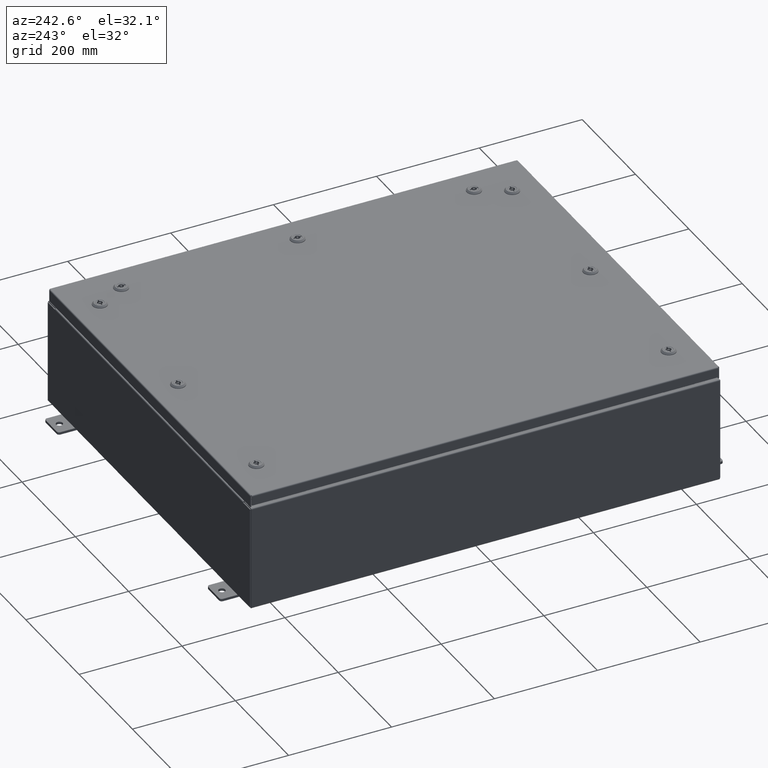
[diagram: clean part render]
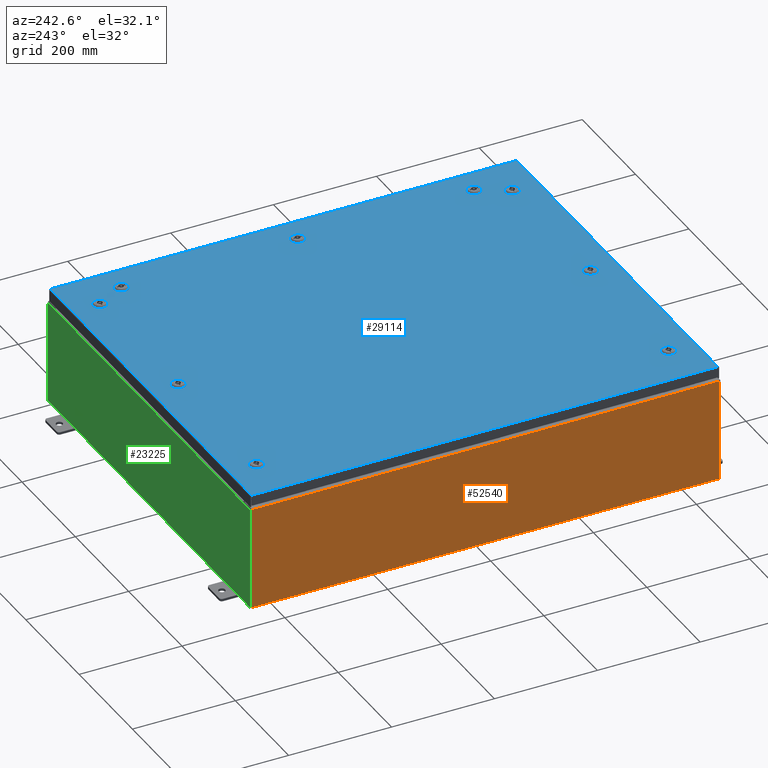
[diagram: same view with three faces highlighted in distinct colors, each labeled with its STEP entity id]
A machine part, auxiliary view with three faces highlighted in distinct colors.
Their STEP definitions:

[orange] entity #52540 — the highlighted planar face has unit normal (1, 0, 0).
#1240 = VECTOR ( 'NONE', #11607, 39.37007874015748100 ) ;
#2078 = CARTESIAN_POINT ( 'NONE',  ( -15.00000000000000400, -17.92530000000000000, -5.403395625144963300E-014 ) ) ;
#5622 = ORIENTED_EDGE ( 'NONE', *, *, #5788, .T. ) ;
#5788 = EDGE_CURVE ( 'NONE', #61173, #23015, #40225, .T. ) ;
#5936 = VERTEX_POINT ( 'NONE', #52964 ) ;
#6127 = VERTEX_POINT ( 'NONE', #28693 ) ;
#7732 = VECTOR ( 'NONE', #46906, 39.37007874015748100 ) ;
#10177 = VECTOR ( 'NONE', #37631, 39.37007874015748100 ) ;
#11293 = CARTESIAN_POINT ( 'NONE',  ( -15.00000000000000400, 17.92530000000000000, 0.01299999999999984700 ) ) ;
#11607 = DIRECTION ( 'NONE',  ( 3.584876173029202900E-015, 0.0000000000000000000, -1.000000000000000000 ) ) ;
#11846 = PLANE ( 'NONE',  #28466 ) ;
#16561 = ORIENTED_EDGE ( 'NONE', *, *, #24293, .T. ) ;
#16760 = EDGE_LOOP ( 'NONE', ( #53736, #5622, #45268, #16561 ) ) ;
#18169 = LINE ( 'NONE', #46766, #31697 ) ;
#18217 = CARTESIAN_POINT ( 'NONE',  ( -15.00000000000000400, 17.92530000000000000, 0.01299999999999983600 ) ) ;
#21857 = CARTESIAN_POINT ( 'NONE',  ( -15.00000000000000400, 17.92530000000000000, -5.403395625144963300E-014 ) ) ;
#22083 = DIRECTION ( 'NONE',  ( 1.000000000000000000, 0.0000000000000000000, 3.584876173029202900E-015 ) ) ;
#22198 = CARTESIAN_POINT ( 'NONE',  ( -15.00000000000003200, 17.92530000000000000, 7.837599999999999200 ) ) ;
#23015 = VERTEX_POINT ( 'NONE', #18217 ) ;
#24293 = EDGE_CURVE ( 'NONE', #6127, #5936, #37205, .T. ) ;
#26528 = DIRECTION ( 'NONE',  ( 0.0000000000000000000, 1.000000000000000000, 0.0000000000000000000 ) ) ;
#28145 = EDGE_CURVE ( 'NONE', #5936, #61173, #18169, .T. ) ;
#28466 = AXIS2_PLACEMENT_3D ( 'NONE', #32081, #22083, #57680 ) ;
#28693 = CARTESIAN_POINT ( 'NONE',  ( -15.00000000000000400, -17.92530000000000000, 0.01299999999999984700 ) ) ;
#29100 = EDGE_CURVE ( 'NONE', #6127, #23015, #34826, .T. ) ;
#30365 = FACE_OUTER_BOUND ( 'NONE', #16760, .T. ) ;
#31697 = VECTOR ( 'NONE', #26528, 39.37007874015748100 ) ;
#32081 = CARTESIAN_POINT ( 'NONE',  ( -15.00000000000000400, 0.0000000000000000000, -5.403395625144963300E-014 ) ) ;
#34826 = LINE ( 'NONE', #11293, #7732 ) ;
#37205 = LINE ( 'NONE', #2078, #10177 ) ;
#37631 = DIRECTION ( 'NONE',  ( -3.584876173029202900E-015, 0.0000000000000000000, 1.000000000000000000 ) ) ;
#40225 = LINE ( 'NONE', #21857, #1240 ) ;
#45268 = ORIENTED_EDGE ( 'NONE', *, *, #29100, .F. ) ;
#46766 = CARTESIAN_POINT ( 'NONE',  ( -15.00000000000003200, -17.92530000000000000, 7.837599999999999200 ) ) ;
#46906 = DIRECTION ( 'NONE',  ( -0.0000000000000000000, 1.000000000000000000, -0.0000000000000000000 ) ) ;
#52540 = ADVANCED_FACE ( 'NONE', ( #30365 ), #11846, .F. ) ;
#52964 = CARTESIAN_POINT ( 'NONE',  ( -15.00000000000003200, -17.92530000000000000, 7.837599999999999200 ) ) ;
#53736 = ORIENTED_EDGE ( 'NONE', *, *, #28145, .T. ) ;
#57680 = DIRECTION ( 'NONE',  ( 3.584876173029202900E-015, 0.0000000000000000000, -1.000000000000000000 ) ) ;
#61173 = VERTEX_POINT ( 'NONE', #22198 ) ;

[blue] entity #29114 — the highlighted planar face has unit normal (0, 0, -1).
#155 = LINE ( 'NONE', #30704, #39104 ) ;
#223 = DIRECTION ( 'NONE',  ( -0.0000000000000000000, -6.982962677686266700E-015, 1.000000000000000000 ) ) ;
#236 = CARTESIAN_POINT ( 'NONE',  ( -11.36304762473209400, 16.18279999999998300, 0.0000000000000000000 ) ) ;
#450 = LINE ( 'NONE', #33769, #25928 ) ;
#601 = VERTEX_POINT ( 'NONE', #34027 ) ;
#625 = DIRECTION ( 'NONE',  ( -1.000000000000000000, -0.0000000000000000000, -6.982962677686306200E-015 ) ) ;
#886 = CARTESIAN_POINT ( 'NONE',  ( 11.56249999999998200, -15.78779999999999500, -9.280357398645127900E-015 ) ) ;
#1101 = PLANE ( 'NONE',  #20292 ) ;
#1357 = CARTESIAN_POINT ( 'NONE',  ( 11.56249999999998200, -15.78779999999999500, -9.280357398645127900E-015 ) ) ;
#1432 = DIRECTION ( 'NONE',  ( -5.478697338139220100E-015, 1.000000000000000000, -0.0000000000000000000 ) ) ;
#1442 = CARTESIAN_POINT ( 'NONE',  ( -14.84980000000000200, 17.84979999999999800, -2.048885995248197400E-016 ) ) ;
#1656 = CIRCLE ( 'NONE', #19888, 0.4424999999999983400 ) ;
#1927 = ORIENTED_EDGE ( 'NONE', *, *, #12160, .F. ) ;
#1963 = AXIS2_PLACEMENT_3D ( 'NONE', #46003, #15574, #51142 ) ;
#1968 = DIRECTION ( 'NONE',  ( -0.0000000000000000000, -6.982962677686266700E-015, 1.000000000000000000 ) ) ;
#1994 = CIRCLE ( 'NONE', #1963, 0.4424999999999983400 ) ;
#2149 = AXIS2_PLACEMENT_3D ( 'NONE', #38192, #7721, #43327 ) ;
#2293 = AXIS2_PLACEMENT_3D ( 'NONE', #30682, #223, #35789 ) ;
#2431 = DIRECTION ( 'NONE',  ( 0.0000000000000000000, 0.0000000000000000000, 1.000000000000000000 ) ) ;
#3245 = ORIENTED_EDGE ( 'NONE', *, *, #54302, .F. ) ;
#3354 = VERTEX_POINT ( 'NONE', #32312 ) ;
#3888 = CARTESIAN_POINT ( 'NONE',  ( 1.529834876451987200E-014, -15.78779999999999000, -2.521317385144146900E-013 ) ) ;
#4235 = AXIS2_PLACEMENT_3D ( 'NONE', #40244, #9768, #45359 ) ;
#4294 = AXIS2_PLACEMENT_3D ( 'NONE', #25294, #60916, #30409 ) ;
#4567 = CARTESIAN_POINT ( 'NONE',  ( 13.18280000000000700, -0.1994523752678676000, 0.0000000000000000000 ) ) ;
#4942 = CARTESIAN_POINT ( 'NONE',  ( 12.00499999999998100, -15.78779999999999500, -6.190396413768972700E-015 ) ) ;
#4946 = EDGE_CURVE ( 'NONE', #61001, #25186, #25154, .T. ) ;
#5113 = AXIS2_PLACEMENT_3D ( 'NONE', #3888, #39472, #8993 ) ;
#5191 = CARTESIAN_POINT ( 'NONE',  ( 14.84979999999999700, -17.84979999999999800, -2.048885995248197400E-016 ) ) ;
#5834 = CIRCLE ( 'NONE', #48675, 0.4424999999999961700 ) ;
#5986 = DIRECTION ( 'NONE',  ( 1.000000000000000000, 0.0000000000000000000, 6.982962677686252500E-015 ) ) ;
#6189 = FACE_BOUND ( 'NONE', #11021, .T. ) ;
#6427 = CIRCLE ( 'NONE', #22537, 0.4424999999999961700 ) ;
#6447 = CARTESIAN_POINT ( 'NONE',  ( 12.78780000000000600, -13.50000000000001800, -9.426999614876466400E-014 ) ) ;
#6469 = DIRECTION ( 'NONE',  ( 1.000000000000000000, 0.0000000000000000000, 6.982962677686252500E-015 ) ) ;
#6756 = LINE ( 'NONE', #26053, #32207 ) ;
#7100 = DIRECTION ( 'NONE',  ( 0.0000000000000000000, 0.0000000000000000000, 1.000000000000000000 ) ) ;
#7138 = DIRECTION ( 'NONE',  ( 0.0000000000000000000, 0.0000000000000000000, 1.000000000000000000 ) ) ;
#7286 = CARTESIAN_POINT ( 'NONE',  ( 0.1994523752678995500, -15.39279999999999400, -2.493734682567286900E-013 ) ) ;
#7522 = EDGE_CURVE ( 'NONE', #32499, #28945, #1994, .T. ) ;
#7721 = DIRECTION ( 'NONE',  ( -6.982962677686266700E-015, -6.982962677686266700E-015, 1.000000000000000000 ) ) ;
#7734 = CARTESIAN_POINT ( 'NONE',  ( 14.84979999999999700, -17.84979999999999800, -2.048885995248197400E-016 ) ) ;
#8391 = VERTEX_POINT ( 'NONE', #23850 ) ;
#8417 = DIRECTION ( 'NONE',  ( -1.095739467627838000E-014, -1.000000000000000000, 0.0000000000000000000 ) ) ;
#8479 = VERTEX_POINT ( 'NONE', #24949 ) ;
#8554 = AXIS2_PLACEMENT_3D ( 'NONE', #32414, #1968, #37514 ) ;
#8903 = VERTEX_POINT ( 'NONE', #31450 ) ;
#8993 = DIRECTION ( 'NONE',  ( 0.0000000000000000000, 1.000000000000000000, 6.982962677686270700E-015 ) ) ;
#9435 = VERTEX_POINT ( 'NONE', #60544 ) ;
#9768 = DIRECTION ( 'NONE',  ( -0.0000000000000000000, -6.982962677686266700E-015, 1.000000000000000000 ) ) ;
#9818 = ORIENTED_EDGE ( 'NONE', *, *, #57902, .T. ) ;
#10134 = ORIENTED_EDGE ( 'NONE', *, *, #54936, .T. ) ;
#10342 = VECTOR ( 'NONE', #52389, 39.37007874015748100 ) ;
#10841 = CIRCLE ( 'NONE', #63305, 0.4424999999999973400 ) ;
#10945 = ORIENTED_EDGE ( 'NONE', *, *, #29200, .F. ) ;
#11021 = EDGE_LOOP ( 'NONE', ( #37537, #26807, #25952, #10945, #51276 ) ) ;
#11263 = VERTEX_POINT ( 'NONE', #50625 ) ;
#11514 = CARTESIAN_POINT ( 'NONE',  ( 0.0000000000000000000, 0.0000000000000000000, 0.0000000000000000000 ) ) ;
#11544 = DIRECTION ( 'NONE',  ( 0.0000000000000000000, 1.000000000000000000, 6.982962677686270700E-015 ) ) ;
#11768 = DIRECTION ( 'NONE',  ( 0.0000000000000000000, -1.000000000000000000, 0.0000000000000000000 ) ) ;
#11803 = AXIS2_PLACEMENT_3D ( 'NONE', #25245, #60861, #30360 ) ;
#11925 = CARTESIAN_POINT ( 'NONE',  ( 11.36304762473209400, 16.18279999999998600, -2.414586126232980000E-013 ) ) ;
#12012 = DIRECTION ( 'NONE',  ( -1.095739467627836100E-014, -1.000000000000000000, 0.0000000000000000000 ) ) ;
#12039 = CARTESIAN_POINT ( 'NONE',  ( -11.56249999999998200, -15.78779999999999500, -2.521317385144146900E-013 ) ) ;
#12160 = EDGE_CURVE ( 'NONE', #25186, #50595, #56951, .T. ) ;
#12461 = EDGE_CURVE ( 'NONE', #11263, #51493, #50583, .T. ) ;
#12651 = CARTESIAN_POINT ( 'NONE',  ( 13.18280000000000200, 0.1994523752679009100, 0.0000000000000000000 ) ) ;
#12871 = DIRECTION ( 'NONE',  ( 6.982962677686266700E-015, -0.0000000000000000000, 1.000000000000000000 ) ) ;
#12878 = VECTOR ( 'NONE', #1432, 39.37007874015748100 ) ;
#13310 = CIRCLE ( 'NONE', #32452, 0.4424999999999961700 ) ;
#13397 = ORIENTED_EDGE ( 'NONE', *, *, #17614, .F. ) ;
#13716 = AXIS2_PLACEMENT_3D ( 'NONE', #20043, #55633, #25139 ) ;
#14005 = ORIENTED_EDGE ( 'NONE', *, *, #15912, .F. ) ;
#14067 = ORIENTED_EDGE ( 'NONE', *, *, #48541, .F. ) ;
#14348 = VERTEX_POINT ( 'NONE', #30591 ) ;
#14787 = ORIENTED_EDGE ( 'NONE', *, *, #64689, .F. ) ;
#14960 = VECTOR ( 'NONE', #37500, 39.37007874015748100 ) ;
#15026 = VERTEX_POINT ( 'NONE', #50320 ) ;
#15066 = LINE ( 'NONE', #58688, #54013 ) ;
#15568 = VECTOR ( 'NONE', #27105, 39.37007874015748100 ) ;
#15574 = DIRECTION ( 'NONE',  ( 6.982962677686266700E-015, -0.0000000000000000000, 1.000000000000000000 ) ) ;
#15912 = EDGE_CURVE ( 'NONE', #23263, #56764, #54325, .T. ) ;
#16524 = LINE ( 'NONE', #32397, #14960 ) ;
#16527 = VERTEX_POINT ( 'NONE', #32408 ) ;
#16725 = CARTESIAN_POINT ( 'NONE',  ( -11.56249999999998800, 15.78779999999999000, 0.0000000000000000000 ) ) ;
#16894 = CARTESIAN_POINT ( 'NONE',  ( 11.36304762473209200, -16.18279999999998600, -1.343139614880270700E-014 ) ) ;
#17050 = EDGE_CURVE ( 'NONE', #14348, #32156, #55030, .T. ) ;
#17194 = DIRECTION ( 'NONE',  ( 0.0000000000000000000, 1.000000000000000000, 6.982962677686304600E-015 ) ) ;
#17392 = ORIENTED_EDGE ( 'NONE', *, *, #19144, .F. ) ;
#17492 = LINE ( 'NONE', #59181, #54914 ) ;
#17614 = EDGE_CURVE ( 'NONE', #32156, #30921, #62942, .T. ) ;
#17736 = CARTESIAN_POINT ( 'NONE',  ( 12.39280000000001400, -13.69945237526790600, -9.566276464123621500E-014 ) ) ;
#18178 = ORIENTED_EDGE ( 'NONE', *, *, #18775, .F. ) ;
#18224 = VECTOR ( 'NONE', #27198, 39.37007874015748100 ) ;
#18517 = ORIENTED_EDGE ( 'NONE', *, *, #57455, .F. ) ;
#18567 = VERTEX_POINT ( 'NONE', #51306 ) ;
#18608 = VERTEX_POINT ( 'NONE', #41264 ) ;
#18775 = EDGE_CURVE ( 'NONE', #57628, #18608, #34391, .T. ) ;
#18830 = CARTESIAN_POINT ( 'NONE',  ( 1.529834876451987200E-014, 15.78779999999999000, 0.0000000000000000000 ) ) ;
#18844 = ORIENTED_EDGE ( 'NONE', *, *, #65407, .F. ) ;
#19144 = EDGE_CURVE ( 'NONE', #16527, #23263, #38335, .T. ) ;
#19259 = EDGE_CURVE ( 'NONE', #46723, #51944, #50331, .T. ) ;
#19734 = FACE_BOUND ( 'NONE', #46741, .T. ) ;
#19888 = AXIS2_PLACEMENT_3D ( 'NONE', #32877, #2431, #37990 ) ;
#20043 = CARTESIAN_POINT ( 'NONE',  ( 12.78780000000000600, -13.50000000000001800, -9.426999614876466400E-014 ) ) ;
#20068 = EDGE_CURVE ( 'NONE', #56764, #21259, #26393, .T. ) ;
#20292 = AXIS2_PLACEMENT_3D ( 'NONE', #11514, #52238, #21758 ) ;
#20889 = VECTOR ( 'NONE', #47465, 39.37007874015748100 ) ;
#21020 = CIRCLE ( 'NONE', #13716, 0.4424999999999961700 ) ;
#21199 = ORIENTED_EDGE ( 'NONE', *, *, #36832, .F. ) ;
#21259 = VERTEX_POINT ( 'NONE', #29894 ) ;
#21312 = FACE_BOUND ( 'NONE', #62198, .T. ) ;
#21329 = CARTESIAN_POINT ( 'NONE',  ( -11.76195237526786900, 15.39279999999999400, 0.0000000000000000000 ) ) ;
#21758 = DIRECTION ( 'NONE',  ( -1.000000000000000000, 0.0000000000000000000, -0.0000000000000000000 ) ) ;
#21840 = DIRECTION ( 'NONE',  ( 1.000000000000000000, 0.0000000000000000000, 0.0000000000000000000 ) ) ;
#22071 = CARTESIAN_POINT ( 'NONE',  ( -11.36304762473209200, -16.18279999999998600, -2.548900087721007400E-013 ) ) ;
#22255 = CARTESIAN_POINT ( 'NONE',  ( 12.39280000000001400, 0.1994523752679053800, 0.0000000000000000000 ) ) ;
#22537 = AXIS2_PLACEMENT_3D ( 'NONE', #54047, #23569, #59152 ) ;
#22761 = CIRCLE ( 'NONE', #11803, 0.4424999999999983400 ) ;
#22994 = EDGE_CURVE ( 'NONE', #30921, #53341, #15066, .T. ) ;
#23088 = DIRECTION ( 'NONE',  ( -5.478697338139235000E-015, 1.000000000000000000, -0.0000000000000000000 ) ) ;
#23159 = CARTESIAN_POINT ( 'NONE',  ( 13.18280000000000200, -13.69945237526790100, -9.566276464123617700E-014 ) ) ;
#23263 = VERTEX_POINT ( 'NONE', #55581 ) ;
#23569 = DIRECTION ( 'NONE',  ( 6.982962677686266700E-015, -0.0000000000000000000, 1.000000000000000000 ) ) ;
#23590 = EDGE_CURVE ( 'NONE', #51493, #59196, #65164, .T. ) ;
#23850 = CARTESIAN_POINT ( 'NONE',  ( -11.76195237526786700, 16.18279999999998600, 0.0000000000000000000 ) ) ;
#23928 = DIRECTION ( 'NONE',  ( 1.000000000000000000, 0.0000000000000000000, 0.0000000000000000000 ) ) ;
#24144 = CIRCLE ( 'NONE', #31644, 0.4424999999999983400 ) ;
#24640 = VERTEX_POINT ( 'NONE', #44667 ) ;
#24791 = VECTOR ( 'NONE', #8417, 39.37007874015748100 ) ;
#24949 = CARTESIAN_POINT ( 'NONE',  ( -0.1994523752678657400, -16.18279999999998600, 0.0000000000000000000 ) ) ;
#25139 = DIRECTION ( 'NONE',  ( 0.0000000000000000000, 1.000000000000000000, 6.982962677686269100E-015 ) ) ;
#25154 = LINE ( 'NONE', #31078, #65805 ) ;
#25186 = VERTEX_POINT ( 'NONE', #53265 ) ;
#25245 = CARTESIAN_POINT ( 'NONE',  ( 12.78780000000000600, 13.50000000000001800, 0.0000000000000000000 ) ) ;
#25294 = CARTESIAN_POINT ( 'NONE',  ( -11.56249999999998200, -15.78779999999999500, -2.521317385144146900E-013 ) ) ;
#25603 = ORIENTED_EDGE ( 'NONE', *, *, #59989, .F. ) ;
#25791 = ORIENTED_EDGE ( 'NONE', *, *, #46800, .F. ) ;
#25928 = VECTOR ( 'NONE', #54264, 39.37007874015748100 ) ;
#25952 = ORIENTED_EDGE ( 'NONE', *, *, #65756, .F. ) ;
#25955 = CARTESIAN_POINT ( 'NONE',  ( 1.529834876451987200E-014, 15.78779999999999000, 0.0000000000000000000 ) ) ;
#26005 = EDGE_CURVE ( 'NONE', #8479, #45707, #30166, .T. ) ;
#26026 = EDGE_CURVE ( 'NONE', #53218, #40921, #43665, .T. ) ;
#26053 = CARTESIAN_POINT ( 'NONE',  ( 14.84979999999999700, 17.84979999999999800, -2.048885995248197400E-016 ) ) ;
#26243 = LINE ( 'NONE', #5191, #53249 ) ;
#26359 = CARTESIAN_POINT ( 'NONE',  ( 0.1994523752678995500, -15.39279999999999400, -2.493734682567286900E-013 ) ) ;
#26384 = VECTOR ( 'NONE', #12012, 39.37007874015748100 ) ;
#26393 = LINE ( 'NONE', #33765, #24791 ) ;
#26567 = CARTESIAN_POINT ( 'NONE',  ( -0.1994523752678657400, 16.18279999999998600, 0.0000000000000000000 ) ) ;
#26698 = ORIENTED_EDGE ( 'NONE', *, *, #58047, .T. ) ;
#26807 = ORIENTED_EDGE ( 'NONE', *, *, #53350, .F. ) ;
#26818 = CARTESIAN_POINT ( 'NONE',  ( -11.36304762473209400, 16.18279999999998300, 0.0000000000000000000 ) ) ;
#26877 = DIRECTION ( 'NONE',  ( 0.0000000000000000000, 0.0000000000000000000, 1.000000000000000000 ) ) ;
#27105 = DIRECTION ( 'NONE',  ( 1.000000000000000000, -0.0000000000000000000, -0.0000000000000000000 ) ) ;
#27198 = DIRECTION ( 'NONE',  ( 1.000000000000000000, 1.095739467627836100E-014, 7.785697190085984100E-029 ) ) ;
#27205 = CIRCLE ( 'NONE', #32274, 0.4424999999999961700 ) ;
#27349 = CARTESIAN_POINT ( 'NONE',  ( 0.1994523752678995500, 15.39279999999999400, 0.0000000000000000000 ) ) ;
#27409 = DIRECTION ( 'NONE',  ( 0.0000000000000000000, 0.0000000000000000000, 1.000000000000000000 ) ) ;
#27646 = ORIENTED_EDGE ( 'NONE', *, *, #32489, .F. ) ;
#28065 = CARTESIAN_POINT ( 'NONE',  ( 12.39280000000001400, -13.69945237526790600, -9.566276464123621500E-014 ) ) ;
#28160 = ORIENTED_EDGE ( 'NONE', *, *, #58398, .F. ) ;
#28374 = VECTOR ( 'NONE', #35189, 39.37007874015748100 ) ;
#28876 = ORIENTED_EDGE ( 'NONE', *, *, #50490, .F. ) ;
#28922 = CARTESIAN_POINT ( 'NONE',  ( 11.36304762473209400, 16.18279999999998600, -2.414586126232980000E-013 ) ) ;
#28945 = VERTEX_POINT ( 'NONE', #35796 ) ;
#29064 = VERTEX_POINT ( 'NONE', #21329 ) ;
#29114 = ADVANCED_FACE ( 'NONE', ( #60318, #21312, #49984, #46778, #33192, #19734, #6189, #58691, #45173, #31637 ), #1101, .F. ) ;
#29200 = EDGE_CURVE ( 'NONE', #28945, #18567, #16524, .T. ) ;
#29243 = ORIENTED_EDGE ( 'NONE', *, *, #33702, .F. ) ;
#29275 = AXIS2_PLACEMENT_3D ( 'NONE', #6447, #42007, #11544 ) ;
#29715 = CARTESIAN_POINT ( 'NONE',  ( -14.84980000000000200, -17.84980000000000200, -2.048885995248197400E-016 ) ) ;
#29894 = CARTESIAN_POINT ( 'NONE',  ( 12.39280000000001000, 13.30054762473213400, 0.0000000000000000000 ) ) ;
#30061 = CARTESIAN_POINT ( 'NONE',  ( -11.76195237526786700, -15.39279999999999900, -2.493734682567286400E-013 ) ) ;
#30166 = LINE ( 'NONE', #62825, #18224 ) ;
#30321 = DIRECTION ( 'NONE',  ( 0.0000000000000000000, 0.0000000000000000000, 1.000000000000000000 ) ) ;
#30360 = DIRECTION ( 'NONE',  ( 1.000000000000000000, 0.0000000000000000000, 0.0000000000000000000 ) ) ;
#30409 = DIRECTION ( 'NONE',  ( 0.0000000000000000000, 1.000000000000000000, 6.982962677686304600E-015 ) ) ;
#30568 = AXIS2_PLACEMENT_3D ( 'NONE', #886, #36438, #5986 ) ;
#30591 = CARTESIAN_POINT ( 'NONE',  ( 12.39280000000001400, 0.1994523752679062100, 0.0000000000000000000 ) ) ;
#30682 = CARTESIAN_POINT ( 'NONE',  ( -11.56249999999998200, -15.78779999999999500, -2.521317385144146900E-013 ) ) ;
#30704 = CARTESIAN_POINT ( 'NONE',  ( 0.1994523752679067700, 16.18279999999998300, 0.0000000000000000000 ) ) ;
#30760 = EDGE_CURVE ( 'NONE', #40921, #65340, #10841, .T. ) ;
#30850 = LINE ( 'NONE', #47382, #53085 ) ;
#30921 = VERTEX_POINT ( 'NONE', #4567 ) ;
#31050 = DIRECTION ( 'NONE',  ( 1.000000000000000000, 0.0000000000000000000, 0.0000000000000000000 ) ) ;
#31078 = CARTESIAN_POINT ( 'NONE',  ( 11.36304762473210100, -15.39279999999999900, -7.914855633430593000E-015 ) ) ;
#31150 = DIRECTION ( 'NONE',  ( -1.000000000000000000, -0.0000000000000000000, -0.0000000000000000000 ) ) ;
#31220 = EDGE_CURVE ( 'NONE', #55649, #24640, #1656, .T. ) ;
#31408 = CIRCLE ( 'NONE', #2293, 0.4424999999999983400 ) ;
#31450 = CARTESIAN_POINT ( 'NONE',  ( -11.76195237526786600, -16.18279999999999000, 0.0000000000000000000 ) ) ;
#31637 = FACE_OUTER_BOUND ( 'NONE', #38799, .T. ) ;
#31644 = AXIS2_PLACEMENT_3D ( 'NONE', #37557, #7100, #42688 ) ;
#32156 = VERTEX_POINT ( 'NONE', #57229 ) ;
#32207 = VECTOR ( 'NONE', #31150, 39.37007874015748100 ) ;
#32274 = AXIS2_PLACEMENT_3D ( 'NONE', #16725, #52311, #21840 ) ;
#32312 = CARTESIAN_POINT ( 'NONE',  ( -0.1994523752678689600, -15.39279999999999400, -2.493734682567286400E-013 ) ) ;
#32347 = ORIENTED_EDGE ( 'NONE', *, *, #48045, .T. ) ;
#32397 = CARTESIAN_POINT ( 'NONE',  ( 11.36304762473210200, 15.39279999999999900, -2.414586126232981000E-013 ) ) ;
#32408 = CARTESIAN_POINT ( 'NONE',  ( 13.18280000000000400, 13.30054762473213300, 0.0000000000000000000 ) ) ;
#32414 = CARTESIAN_POINT ( 'NONE',  ( 1.529834876451987200E-014, -15.78779999999999000, -2.521317385144146900E-013 ) ) ;
#32452 = AXIS2_PLACEMENT_3D ( 'NONE', #12039, #47644, #17194 ) ;
#32489 = EDGE_CURVE ( 'NONE', #50595, #15026, #17492, .T. ) ;
#32499 = VERTEX_POINT ( 'NONE', #28922 ) ;
#32569 = DIRECTION ( 'NONE',  ( -1.000000000000000000, 0.0000000000000000000, 7.785697190086082800E-029 ) ) ;
#32867 = AXIS2_PLACEMENT_3D ( 'NONE', #57907, #27409, #63026 ) ;
#32877 = CARTESIAN_POINT ( 'NONE',  ( -11.56249999999998800, 15.78779999999999000, 0.0000000000000000000 ) ) ;
#33180 = DIRECTION ( 'NONE',  ( 1.095739467627838000E-014, -1.000000000000000000, -6.982962677686269100E-015 ) ) ;
#33192 = FACE_BOUND ( 'NONE', #41105, .T. ) ;
#33275 = CIRCLE ( 'NONE', #34852, 0.4424999999999983400 ) ;
#33702 = EDGE_CURVE ( 'NONE', #24640, #51513, #33275, .T. ) ;
#33765 = CARTESIAN_POINT ( 'NONE',  ( 12.39280000000001400, 13.69945237526790600, 0.0000000000000000000 ) ) ;
#33769 = CARTESIAN_POINT ( 'NONE',  ( 0.1994523752678995500, 15.39279999999999400, 0.0000000000000000000 ) ) ;
#33870 = CIRCLE ( 'NONE', #8554, 0.4424999999999983400 ) ;
#34027 = CARTESIAN_POINT ( 'NONE',  ( -11.36304762473209200, -16.18279999999998600, -2.548900087721007400E-013 ) ) ;
#34391 = LINE ( 'NONE', #42324, #20889 ) ;
#34852 = AXIS2_PLACEMENT_3D ( 'NONE', #57347, #26877, #62500 ) ;
#35189 = DIRECTION ( 'NONE',  ( 1.000000000000000000, -0.0000000000000000000, -0.0000000000000000000 ) ) ;
#35789 = DIRECTION ( 'NONE',  ( 0.0000000000000000000, 1.000000000000000000, 6.982962677686270700E-015 ) ) ;
#35796 = CARTESIAN_POINT ( 'NONE',  ( 11.36304762473210200, 15.39279999999999900, -2.414586126232981000E-013 ) ) ;
#36438 = DIRECTION ( 'NONE',  ( -6.982962677686266700E-015, -6.982962677686266700E-015, 1.000000000000000000 ) ) ;
#36832 = EDGE_CURVE ( 'NONE', #50559, #63334, #33870, .T. ) ;
#36911 = DIRECTION ( 'NONE',  ( -6.982962677686266700E-015, -6.982962677686266700E-015, 1.000000000000000000 ) ) ;
#37098 = CARTESIAN_POINT ( 'NONE',  ( -14.84980000000000200, -17.84980000000000200, -2.048885995248197400E-016 ) ) ;
#37104 = CARTESIAN_POINT ( 'NONE',  ( 0.4425000000000126100, -15.78779999999999000, -2.521317385144146900E-013 ) ) ;
#37500 = DIRECTION ( 'NONE',  ( 1.000000000000000000, 0.0000000000000000000, -6.982962677686265900E-015 ) ) ;
#37514 = DIRECTION ( 'NONE',  ( 0.0000000000000000000, 1.000000000000000000, 6.982962677686270700E-015 ) ) ;
#37537 = ORIENTED_EDGE ( 'NONE', *, *, #58627, .F. ) ;
#37557 = CARTESIAN_POINT ( 'NONE',  ( 12.78780000000000600, 1.529834876451990400E-014, 0.0000000000000000000 ) ) ;
#37598 = CARTESIAN_POINT ( 'NONE',  ( 12.78780000000000600, 1.529834876451990400E-014, 0.0000000000000000000 ) ) ;
#37990 = DIRECTION ( 'NONE',  ( 1.000000000000000000, 0.0000000000000000000, 0.0000000000000000000 ) ) ;
#38192 = CARTESIAN_POINT ( 'NONE',  ( 11.56249999999998200, -15.78779999999999500, -9.280357398645127900E-015 ) ) ;
#38199 = AXIS2_PLACEMENT_3D ( 'NONE', #1357, #36911, #6469 ) ;
#38335 = LINE ( 'NONE', #52369, #12878 ) ;
#38724 = LINE ( 'NONE', #60570, #28374 ) ;
#38799 = EDGE_LOOP ( 'NONE', ( #26698, #10134, #9818, #32347 ) ) ;
#38836 = ORIENTED_EDGE ( 'NONE', *, *, #26026, .F. ) ;
#38957 = AXIS2_PLACEMENT_3D ( 'NONE', #37598, #7138, #42727 ) ;
#39104 = VECTOR ( 'NONE', #46259, 39.37007874015748100 ) ;
#39472 = DIRECTION ( 'NONE',  ( -0.0000000000000000000, -6.982962677686266700E-015, 1.000000000000000000 ) ) ;
#39478 = VERTEX_POINT ( 'NONE', #1442 ) ;
#40244 = CARTESIAN_POINT ( 'NONE',  ( 1.529834876451987200E-014, -15.78779999999999000, -2.521317385144146900E-013 ) ) ;
#40392 = LINE ( 'NONE', #22071, #52317 ) ;
#40479 = CARTESIAN_POINT ( 'NONE',  ( -11.36304762473210100, -15.39279999999999900, -2.493734682567286900E-013 ) ) ;
#40703 = EDGE_CURVE ( 'NONE', #9435, #53218, #450, .T. ) ;
#40848 = CIRCLE ( 'NONE', #30568, 0.4424999999999983400 ) ;
#40921 = VERTEX_POINT ( 'NONE', #53784 ) ;
#41105 = EDGE_LOOP ( 'NONE', ( #65959, #28160, #52171, #53453, #18517 ) ) ;
#41242 = CARTESIAN_POINT ( 'NONE',  ( 12.39280000000001000, -13.30054762473213400, 0.0000000000000000000 ) ) ;
#41264 = CARTESIAN_POINT ( 'NONE',  ( 13.18280000000000400, -13.30054762473213300, -9.287722765629316300E-014 ) ) ;
#41629 = ORIENTED_EDGE ( 'NONE', *, *, #31220, .F. ) ;
#41741 = VERTEX_POINT ( 'NONE', #29715 ) ;
#42007 = DIRECTION ( 'NONE',  ( -0.0000000000000000000, -6.982962677686266700E-015, 1.000000000000000000 ) ) ;
#42207 = CIRCLE ( 'NONE', #4235, 0.4424999999999961700 ) ;
#42324 = CARTESIAN_POINT ( 'NONE',  ( 13.18280000000000200, -13.69945237526790100, -9.566276464123617700E-014 ) ) ;
#42553 = LINE ( 'NONE', #37098, #15568 ) ;
#42688 = DIRECTION ( 'NONE',  ( 1.000000000000000000, 0.0000000000000000000, 0.0000000000000000000 ) ) ;
#42727 = DIRECTION ( 'NONE',  ( 1.000000000000000000, 0.0000000000000000000, 0.0000000000000000000 ) ) ;
#43104 = ORIENTED_EDGE ( 'NONE', *, *, #44892, .F. ) ;
#43327 = DIRECTION ( 'NONE',  ( 1.000000000000000000, 0.0000000000000000000, 6.982962677686277800E-015 ) ) ;
#43349 = CARTESIAN_POINT ( 'NONE',  ( 11.56249999999998800, 15.78779999999999500, -2.428513811157696100E-013 ) ) ;
#43665 = CIRCLE ( 'NONE', #32867, 0.4424999999999973400 ) ;
#43733 = CIRCLE ( 'NONE', #5113, 0.4424999999999983400 ) ;
#44667 = CARTESIAN_POINT ( 'NONE',  ( -11.11999999999998900, 15.78779999999999000, 0.0000000000000000000 ) ) ;
#44892 = EDGE_CURVE ( 'NONE', #51513, #8391, #50971, .T. ) ;
#44900 = ORIENTED_EDGE ( 'NONE', *, *, #53556, .F. ) ;
#45173 = FACE_BOUND ( 'NONE', #55922, .T. ) ;
#45359 = DIRECTION ( 'NONE',  ( 0.0000000000000000000, 1.000000000000000000, 6.982962677686304600E-015 ) ) ;
#45707 = VERTEX_POINT ( 'NONE', #52240 ) ;
#46003 = CARTESIAN_POINT ( 'NONE',  ( 11.56249999999998800, 15.78779999999999500, -2.428513811157696100E-013 ) ) ;
#46259 = DIRECTION ( 'NONE',  ( -1.000000000000000000, 1.095739467627836100E-014, 0.0000000000000000000 ) ) ;
#46715 = CARTESIAN_POINT ( 'NONE',  ( 11.76195237526786700, -15.39279999999999900, 0.0000000000000000000 ) ) ;
#46723 = VERTEX_POINT ( 'NONE', #41242 ) ;
#46741 = EDGE_LOOP ( 'NONE', ( #53937, #44900, #25791, #21199, #3245 ) ) ;
#46778 = FACE_BOUND ( 'NONE', #61605, .T. ) ;
#46800 = EDGE_CURVE ( 'NONE', #63334, #3354, #62765, .T. ) ;
#47367 = CARTESIAN_POINT ( 'NONE',  ( 14.84979999999999700, 17.84979999999999800, -2.048885995248197400E-016 ) ) ;
#47382 = CARTESIAN_POINT ( 'NONE',  ( -14.84980000000000200, 17.84979999999999800, -2.048885995248197400E-016 ) ) ;
#47443 = EDGE_LOOP ( 'NONE', ( #61559, #13397, #59462, #65655 ) ) ;
#47465 = DIRECTION ( 'NONE',  ( 5.478697338139220100E-015, 1.000000000000000000, 6.982962677686228100E-015 ) ) ;
#47480 = CIRCLE ( 'NONE', #38199, 0.4424999999999983400 ) ;
#47644 = DIRECTION ( 'NONE',  ( -0.0000000000000000000, -6.982962677686266700E-015, 1.000000000000000000 ) ) ;
#47735 = EDGE_LOOP ( 'NONE', ( #14067, #54320, #43104, #29243, #41629 ) ) ;
#48045 = EDGE_CURVE ( 'NONE', #39478, #41741, #30850, .T. ) ;
#48473 = DIRECTION ( 'NONE',  ( -1.000000000000000000, 0.0000000000000000000, 6.982962677686304600E-015 ) ) ;
#48541 = EDGE_CURVE ( 'NONE', #29064, #55649, #38724, .T. ) ;
#48675 = AXIS2_PLACEMENT_3D ( 'NONE', #43349, #12871, #48473 ) ;
#48695 = VECTOR ( 'NONE', #33180, 39.37007874015748100 ) ;
#48780 = EDGE_CURVE ( 'NONE', #15026, #64165, #47480, .T. ) ;
#49180 = DIRECTION ( 'NONE',  ( 1.000000000000000000, -1.095739467627832000E-014, 6.982962677686152300E-015 ) ) ;
#49291 = EDGE_CURVE ( 'NONE', #21259, #16527, #22761, .T. ) ;
#49677 = VERTEX_POINT ( 'NONE', #26567 ) ;
#49984 = FACE_BOUND ( 'NONE', #47443, .T. ) ;
#49986 = AXIS2_PLACEMENT_3D ( 'NONE', #25955, #61544, #31050 ) ;
#50320 = CARTESIAN_POINT ( 'NONE',  ( 11.76195237526786600, -16.18279999999999000, -1.064585916385969600E-014 ) ) ;
#50331 = LINE ( 'NONE', #28065, #48695 ) ;
#50490 = EDGE_CURVE ( 'NONE', #18608, #46723, #56959, .T. ) ;
#50559 = VERTEX_POINT ( 'NONE', #37104 ) ;
#50578 = VERTEX_POINT ( 'NONE', #47367 ) ;
#50583 = CIRCLE ( 'NONE', #4294, 0.4424999999999961700 ) ;
#50595 = VERTEX_POINT ( 'NONE', #16894 ) ;
#50625 = CARTESIAN_POINT ( 'NONE',  ( -11.11999999999998700, -15.78779999999999500, -2.521317385144146900E-013 ) ) ;
#50845 = VECTOR ( 'NONE', #56833, 39.37007874015748100 ) ;
#50971 = LINE ( 'NONE', #26818, #10342 ) ;
#51142 = DIRECTION ( 'NONE',  ( -1.000000000000000000, 0.0000000000000000000, 6.982962677686270700E-015 ) ) ;
#51276 = ORIENTED_EDGE ( 'NONE', *, *, #7522, .F. ) ;
#51306 = CARTESIAN_POINT ( 'NONE',  ( 11.76195237526786900, 15.39279999999999900, -2.442441496082410700E-013 ) ) ;
#51493 = VERTEX_POINT ( 'NONE', #40479 ) ;
#51513 = VERTEX_POINT ( 'NONE', #236 ) ;
#51614 = VECTOR ( 'NONE', #32569, 39.37007874015748100 ) ;
#51752 = EDGE_CURVE ( 'NONE', #8391, #29064, #27205, .T. ) ;
#51944 = VERTEX_POINT ( 'NONE', #17736 ) ;
#52088 = VECTOR ( 'NONE', #57778, 39.37007874015748100 ) ;
#52097 = CARTESIAN_POINT ( 'NONE',  ( 12.39280000000001400, 13.69945237526790600, 0.0000000000000000000 ) ) ;
#52130 = VERTEX_POINT ( 'NONE', #65358 ) ;
#52171 = ORIENTED_EDGE ( 'NONE', *, *, #23590, .F. ) ;
#52238 = DIRECTION ( 'NONE',  ( 0.0000000000000000000, 0.0000000000000000000, -1.000000000000000000 ) ) ;
#52240 = CARTESIAN_POINT ( 'NONE',  ( 0.1994523752679070700, -16.18279999999998300, -2.548900087721007400E-013 ) ) ;
#52311 = DIRECTION ( 'NONE',  ( 0.0000000000000000000, 0.0000000000000000000, 1.000000000000000000 ) ) ;
#52317 = VECTOR ( 'NONE', #52342, 39.37007874015748100 ) ;
#52342 = DIRECTION ( 'NONE',  ( 1.000000000000000000, 1.095739467627832000E-014, 7.785697190085955000E-029 ) ) ;
#52369 = CARTESIAN_POINT ( 'NONE',  ( 13.18280000000000200, 13.69945237526790100, 0.0000000000000000000 ) ) ;
#52389 = DIRECTION ( 'NONE',  ( -1.000000000000000000, 1.095739467627832000E-014, 0.0000000000000000000 ) ) ;
#52575 = EDGE_LOOP ( 'NONE', ( #61879, #28876, #18178, #14787 ) ) ;
#52833 = CARTESIAN_POINT ( 'NONE',  ( -11.36304762473210100, -15.39279999999999900, -2.493734682567286900E-013 ) ) ;
#53085 = VECTOR ( 'NONE', #11768, 39.37007874015748100 ) ;
#53218 = VERTEX_POINT ( 'NONE', #27349 ) ;
#53249 = VECTOR ( 'NONE', #60823, 39.37007874015748100 ) ;
#53265 = CARTESIAN_POINT ( 'NONE',  ( 11.36304762473210100, -15.39279999999999900, -7.914855633430593000E-015 ) ) ;
#53341 = VERTEX_POINT ( 'NONE', #12651 ) ;
#53350 = EDGE_CURVE ( 'NONE', #52130, #61069, #6427, .T. ) ;
#53453 = ORIENTED_EDGE ( 'NONE', *, *, #12461, .F. ) ;
#53556 = EDGE_CURVE ( 'NONE', #3354, #8479, #42207, .T. ) ;
#53784 = CARTESIAN_POINT ( 'NONE',  ( 0.4425000000000126100, 15.78779999999999000, 0.0000000000000000000 ) ) ;
#53937 = ORIENTED_EDGE ( 'NONE', *, *, #26005, .F. ) ;
#54013 = VECTOR ( 'NONE', #23088, 39.37007874015748100 ) ;
#54047 = CARTESIAN_POINT ( 'NONE',  ( 11.56249999999998800, 15.78779999999999500, -2.428513811157696100E-013 ) ) ;
#54264 = DIRECTION ( 'NONE',  ( 1.000000000000000000, -0.0000000000000000000, -0.0000000000000000000 ) ) ;
#54302 = EDGE_CURVE ( 'NONE', #45707, #50559, #43733, .T. ) ;
#54320 = ORIENTED_EDGE ( 'NONE', *, *, #51752, .F. ) ;
#54325 = CIRCLE ( 'NONE', #65834, 0.4424999999999961700 ) ;
#54408 = CIRCLE ( 'NONE', #49986, 0.4424999999999969000 ) ;
#54416 = DIRECTION ( 'NONE',  ( 0.0000000000000000000, 0.0000000000000000000, 1.000000000000000000 ) ) ;
#54914 = VECTOR ( 'NONE', #49180, 39.37007874015748100 ) ;
#54936 = EDGE_CURVE ( 'NONE', #62135, #50578, #26243, .T. ) ;
#55030 = LINE ( 'NONE', #22255, #26384 ) ;
#55153 = ORIENTED_EDGE ( 'NONE', *, *, #48780, .F. ) ;
#55479 = ORIENTED_EDGE ( 'NONE', *, *, #4946, .F. ) ;
#55581 = CARTESIAN_POINT ( 'NONE',  ( 13.18280000000000200, 13.69945237526790100, 0.0000000000000000000 ) ) ;
#55633 = DIRECTION ( 'NONE',  ( -0.0000000000000000000, -6.982962677686266700E-015, 1.000000000000000000 ) ) ;
#55649 = VERTEX_POINT ( 'NONE', #59752 ) ;
#55922 = EDGE_LOOP ( 'NONE', ( #60771, #18844, #65350, #63023, #38836 ) ) ;
#56115 = ORIENTED_EDGE ( 'NONE', *, *, #49291, .F. ) ;
#56764 = VERTEX_POINT ( 'NONE', #52097 ) ;
#56833 = DIRECTION ( 'NONE',  ( -1.000000000000000000, 0.0000000000000000000, 7.785697190086061500E-029 ) ) ;
#56951 = CIRCLE ( 'NONE', #2149, 0.4424999999999961700 ) ;
#56959 = CIRCLE ( 'NONE', #29275, 0.4424999999999983400 ) ;
#57156 = CARTESIAN_POINT ( 'NONE',  ( 11.76195237526786700, 16.18279999999999000, 0.0000000000000000000 ) ) ;
#57229 = CARTESIAN_POINT ( 'NONE',  ( 12.39280000000001000, -0.1994523752678671000, 0.0000000000000000000 ) ) ;
#57347 = CARTESIAN_POINT ( 'NONE',  ( -11.56249999999998800, 15.78779999999999000, 0.0000000000000000000 ) ) ;
#57446 = EDGE_CURVE ( 'NONE', #8903, #601, #40392, .T. ) ;
#57455 = EDGE_CURVE ( 'NONE', #601, #11263, #13310, .T. ) ;
#57628 = VERTEX_POINT ( 'NONE', #23159 ) ;
#57778 = DIRECTION ( 'NONE',  ( -1.000000000000000000, -1.095739467627832000E-014, 6.982962677686228800E-015 ) ) ;
#57902 = EDGE_CURVE ( 'NONE', #50578, #39478, #6756, .T. ) ;
#57907 = CARTESIAN_POINT ( 'NONE',  ( 1.529834876451987200E-014, 15.78779999999999000, 0.0000000000000000000 ) ) ;
#58047 = EDGE_CURVE ( 'NONE', #41741, #62135, #42553, .T. ) ;
#58398 = EDGE_CURVE ( 'NONE', #59196, #8903, #31408, .T. ) ;
#58627 = EDGE_CURVE ( 'NONE', #61069, #32499, #65668, .T. ) ;
#58688 = CARTESIAN_POINT ( 'NONE',  ( 13.18280000000000200, 0.1994523752679009100, 0.0000000000000000000 ) ) ;
#58691 = FACE_BOUND ( 'NONE', #47735, .T. ) ;
#59152 = DIRECTION ( 'NONE',  ( -1.000000000000000000, 0.0000000000000000000, 6.982962677686304600E-015 ) ) ;
#59181 = CARTESIAN_POINT ( 'NONE',  ( 11.36304762473209200, -16.18279999999998600, -1.343139614880271000E-014 ) ) ;
#59196 = VERTEX_POINT ( 'NONE', #30061 ) ;
#59462 = ORIENTED_EDGE ( 'NONE', *, *, #17050, .F. ) ;
#59752 = CARTESIAN_POINT ( 'NONE',  ( -11.36304762473210200, 15.39279999999999400, 0.0000000000000000000 ) ) ;
#59989 = EDGE_CURVE ( 'NONE', #64165, #61001, #40848, .T. ) ;
#60093 = ORIENTED_EDGE ( 'NONE', *, *, #20068, .F. ) ;
#60190 = CARTESIAN_POINT ( 'NONE',  ( 0.1994523752679068500, 16.18279999999998300, 0.0000000000000000000 ) ) ;
#60318 = FACE_BOUND ( 'NONE', #52575, .T. ) ;
#60544 = CARTESIAN_POINT ( 'NONE',  ( -0.1994523752678689600, 15.39279999999999400, 0.0000000000000000000 ) ) ;
#60570 = CARTESIAN_POINT ( 'NONE',  ( -11.36304762473210200, 15.39279999999999400, 0.0000000000000000000 ) ) ;
#60771 = ORIENTED_EDGE ( 'NONE', *, *, #40703, .F. ) ;
#60816 = CARTESIAN_POINT ( 'NONE',  ( 12.78780000000000600, 13.50000000000001800, 0.0000000000000000000 ) ) ;
#60823 = DIRECTION ( 'NONE',  ( 0.0000000000000000000, 1.000000000000000000, 0.0000000000000000000 ) ) ;
#60861 = DIRECTION ( 'NONE',  ( 0.0000000000000000000, 0.0000000000000000000, 1.000000000000000000 ) ) ;
#60916 = DIRECTION ( 'NONE',  ( -0.0000000000000000000, -6.982962677686266700E-015, 1.000000000000000000 ) ) ;
#61001 = VERTEX_POINT ( 'NONE', #46715 ) ;
#61069 = VERTEX_POINT ( 'NONE', #57156 ) ;
#61544 = DIRECTION ( 'NONE',  ( 0.0000000000000000000, 0.0000000000000000000, 1.000000000000000000 ) ) ;
#61559 = ORIENTED_EDGE ( 'NONE', *, *, #22994, .F. ) ;
#61605 = EDGE_LOOP ( 'NONE', ( #55479, #25603, #55153, #27646, #1927 ) ) ;
#61879 = ORIENTED_EDGE ( 'NONE', *, *, #19259, .F. ) ;
#61888 = EDGE_CURVE ( 'NONE', #65340, #49677, #155, .T. ) ;
#62135 = VERTEX_POINT ( 'NONE', #7734 ) ;
#62198 = EDGE_LOOP ( 'NONE', ( #17392, #56115, #60093, #14005 ) ) ;
#62500 = DIRECTION ( 'NONE',  ( 1.000000000000000000, 0.0000000000000000000, 0.0000000000000000000 ) ) ;
#62765 = LINE ( 'NONE', #26359, #50845 ) ;
#62825 = CARTESIAN_POINT ( 'NONE',  ( 0.1994523752679067700, -16.18279999999998300, -2.548900087721007400E-013 ) ) ;
#62942 = CIRCLE ( 'NONE', #38957, 0.4424999999999983400 ) ;
#63023 = ORIENTED_EDGE ( 'NONE', *, *, #30760, .F. ) ;
#63026 = DIRECTION ( 'NONE',  ( 1.000000000000000000, 0.0000000000000000000, 0.0000000000000000000 ) ) ;
#63305 = AXIS2_PLACEMENT_3D ( 'NONE', #18830, #54416, #23928 ) ;
#63334 = VERTEX_POINT ( 'NONE', #7286 ) ;
#64165 = VERTEX_POINT ( 'NONE', #4942 ) ;
#64689 = EDGE_CURVE ( 'NONE', #51944, #57628, #21020, .T. ) ;
#65164 = LINE ( 'NONE', #52833, #51614 ) ;
#65340 = VERTEX_POINT ( 'NONE', #60190 ) ;
#65350 = ORIENTED_EDGE ( 'NONE', *, *, #61888, .F. ) ;
#65358 = CARTESIAN_POINT ( 'NONE',  ( 12.00499999999998300, 15.78779999999999500, -2.459413421006457100E-013 ) ) ;
#65407 = EDGE_CURVE ( 'NONE', #49677, #9435, #54408, .T. ) ;
#65641 = EDGE_CURVE ( 'NONE', #53341, #14348, #24144, .T. ) ;
#65655 = ORIENTED_EDGE ( 'NONE', *, *, #65641, .F. ) ;
#65668 = LINE ( 'NONE', #11925, #52088 ) ;
#65756 = EDGE_CURVE ( 'NONE', #18567, #52130, #5834, .T. ) ;
#65805 = VECTOR ( 'NONE', #625, 39.37007874015748100 ) ;
#65834 = AXIS2_PLACEMENT_3D ( 'NONE', #60816, #30321, #65969 ) ;
#65959 = ORIENTED_EDGE ( 'NONE', *, *, #57446, .F. ) ;
#65969 = DIRECTION ( 'NONE',  ( 1.000000000000000000, 0.0000000000000000000, 0.0000000000000000000 ) ) ;

[green] entity #23225 — the highlighted planar face has unit normal (0, -1, 0).
#2562 = CARTESIAN_POINT ( 'NONE',  ( 13.90587500000000500, 0.0000000000000000000, 3.874949999999999700 ) ) ;
#4231 = CARTESIAN_POINT ( 'NONE',  ( 13.88720000000000500, 0.0000000000000000000, 3.912299999999999700 ) ) ;
#4534 = AXIS2_PLACEMENT_3D ( 'NONE', #38033, #7574, #43164 ) ;
#5319 = ORIENTED_EDGE ( 'NONE', *, *, #43875, .F. ) ;
#6666 = CIRCLE ( 'NONE', #31247, 0.01867499999999949400 ) ;
#6981 = LINE ( 'NONE', #56587, #34035 ) ;
#7115 = EDGE_CURVE ( 'NONE', #60879, #37309, #13160, .T. ) ;
#7574 = DIRECTION ( 'NONE',  ( -0.0000000000000000000, 1.000000000000000000, -0.0000000000000000000 ) ) ;
#7662 = DIRECTION ( 'NONE',  ( 0.0000000000000000000, 0.0000000000000000000, -1.000000000000000000 ) ) ;
#8129 = CARTESIAN_POINT ( 'NONE',  ( -13.92455000000000000, 0.0000000000000000000, 3.874949999999999700 ) ) ;
#8407 = LINE ( 'NONE', #52666, #47433 ) ;
#8595 = FACE_OUTER_BOUND ( 'NONE', #53201, .T. ) ;
#9294 = CARTESIAN_POINT ( 'NONE',  ( 0.0000000000000000000, 0.0000000000000000000, 0.0000000000000000000 ) ) ;
#10047 = CARTESIAN_POINT ( 'NONE',  ( 13.92455000000000500, 0.0000000000000000000, 3.874949999999999700 ) ) ;
#11395 = LINE ( 'NONE', #54170, #23326 ) ;
#11556 = VECTOR ( 'NONE', #41810, 39.37007874015748100 ) ;
#11788 = VECTOR ( 'NONE', #33708, 39.37007874015748100 ) ;
#12976 = CARTESIAN_POINT ( 'NONE',  ( -13.88720000000000200, -0.0000000000000000000, 3.874949999999999700 ) ) ;
#13160 = LINE ( 'NONE', #26717, #11556 ) ;
#13381 = ORIENTED_EDGE ( 'NONE', *, *, #42482, .F. ) ;
#13893 = CARTESIAN_POINT ( 'NONE',  ( 13.88720000000000500, 0.0000000000000000000, 0.0000000000000000000 ) ) ;
#14232 = LINE ( 'NONE', #21919, #65187 ) ;
#14979 = CIRCLE ( 'NONE', #4534, 0.01867499999999949400 ) ;
#15294 = EDGE_CURVE ( 'NONE', #39852, #59144, #46400, .T. ) ;
#18222 = VERTEX_POINT ( 'NONE', #8129 ) ;
#18626 = CARTESIAN_POINT ( 'NONE',  ( -14.92529999999999800, 0.0000000000000000000, 3.925299999999999600 ) ) ;
#18640 = VERTEX_POINT ( 'NONE', #46613 ) ;
#21068 = VERTEX_POINT ( 'NONE', #49471 ) ;
#21137 = VERTEX_POINT ( 'NONE', #39671 ) ;
#21225 = ORIENTED_EDGE ( 'NONE', *, *, #36819, .T. ) ;
#21568 = ORIENTED_EDGE ( 'NONE', *, *, #47531, .F. ) ;
#21790 = ORIENTED_EDGE ( 'NONE', *, *, #41101, .F. ) ;
#21919 = CARTESIAN_POINT ( 'NONE',  ( -14.92529999999999800, 0.0000000000000000000, 3.925299999999999600 ) ) ;
#22191 = DIRECTION ( 'NONE',  ( -1.000000000000000000, -0.0000000000000000000, -0.0000000000000000000 ) ) ;
#22491 = VECTOR ( 'NONE', #58091, 39.37007874015748100 ) ;
#22500 = CARTESIAN_POINT ( 'NONE',  ( -13.88720000000000200, -0.0000000000000000000, 0.0000000000000000000 ) ) ;
#22592 = CARTESIAN_POINT ( 'NONE',  ( 13.92455000000000700, 0.0000000000000000000, 3.925299999999999600 ) ) ;
#23225 = ADVANCED_FACE ( 'NONE', ( #8595 ), #54926, .F. ) ;
#23326 = VECTOR ( 'NONE', #28782, 39.37007874015748100 ) ;
#24660 = DIRECTION ( 'NONE',  ( 0.0000000000000000000, -0.0000000000000000000, -1.000000000000000000 ) ) ;
#26104 = DIRECTION ( 'NONE',  ( 1.000000000000000000, 0.0000000000000000000, 0.0000000000000000000 ) ) ;
#26717 = CARTESIAN_POINT ( 'NONE',  ( 14.92530000000000200, 0.0000000000000000000, 3.925299999999999600 ) ) ;
#28782 = DIRECTION ( 'NONE',  ( 1.000000000000000000, 0.0000000000000000000, 0.0000000000000000000 ) ) ;
#29852 = LINE ( 'NONE', #54908, #43355 ) ;
#30015 = DIRECTION ( 'NONE',  ( -4.340572780400004900E-014, 0.0000000000000000000, -1.000000000000000000 ) ) ;
#30982 = ORIENTED_EDGE ( 'NONE', *, *, #55988, .T. ) ;
#31247 = AXIS2_PLACEMENT_3D ( 'NONE', #2562, #38128, #7662 ) ;
#31278 = ORIENTED_EDGE ( 'NONE', *, *, #34029, .T. ) ;
#31702 = ORIENTED_EDGE ( 'NONE', *, *, #54791, .F. ) ;
#33708 = DIRECTION ( 'NONE',  ( 1.000000000000000000, 0.0000000000000000000, 0.0000000000000000000 ) ) ;
#33738 = ORIENTED_EDGE ( 'NONE', *, *, #43305, .T. ) ;
#34029 = EDGE_CURVE ( 'NONE', #21137, #18640, #37243, .T. ) ;
#34035 = VECTOR ( 'NONE', #26104, 39.37007874015748100 ) ;
#34143 = VERTEX_POINT ( 'NONE', #53022 ) ;
#36819 = EDGE_CURVE ( 'NONE', #37309, #34143, #8407, .T. ) ;
#37243 = LINE ( 'NONE', #18626, #11788 ) ;
#37309 = VERTEX_POINT ( 'NONE', #46664 ) ;
#38033 = CARTESIAN_POINT ( 'NONE',  ( -13.90587500000000200, 0.0000000000000000000, 3.874949999999999700 ) ) ;
#38128 = DIRECTION ( 'NONE',  ( -0.0000000000000000000, 1.000000000000000000, -0.0000000000000000000 ) ) ;
#38458 = ORIENTED_EDGE ( 'NONE', *, *, #7115, .T. ) ;
#39671 = CARTESIAN_POINT ( 'NONE',  ( -14.92529999999999800, 0.0000000000000000000, 3.925299999999999600 ) ) ;
#39852 = VERTEX_POINT ( 'NONE', #22592 ) ;
#40929 = CARTESIAN_POINT ( 'NONE',  ( 14.92530000000000200, 0.0000000000000000000, 3.925299999999999600 ) ) ;
#41101 = EDGE_CURVE ( 'NONE', #18222, #18640, #29852, .T. ) ;
#41810 = DIRECTION ( 'NONE',  ( 0.0000000000000000000, 0.0000000000000000000, -1.000000000000000000 ) ) ;
#41922 = ORIENTED_EDGE ( 'NONE', *, *, #15294, .F. ) ;
#42482 = EDGE_CURVE ( 'NONE', #59144, #21068, #6666, .T. ) ;
#42905 = VECTOR ( 'NONE', #59703, 39.37007874015748100 ) ;
#43164 = DIRECTION ( 'NONE',  ( 0.0000000000000000000, 0.0000000000000000000, -1.000000000000000000 ) ) ;
#43305 = EDGE_CURVE ( 'NONE', #60891, #61720, #11395, .T. ) ;
#43355 = VECTOR ( 'NONE', #60015, 39.37007874015748100 ) ;
#43875 = EDGE_CURVE ( 'NONE', #60891, #56211, #63090, .T. ) ;
#44803 = VECTOR ( 'NONE', #30015, 39.37007874015748100 ) ;
#46400 = LINE ( 'NONE', #60509, #44803 ) ;
#46613 = CARTESIAN_POINT ( 'NONE',  ( -13.92455000000000000, 0.0000000000000000000, 3.925299999999999600 ) ) ;
#46664 = CARTESIAN_POINT ( 'NONE',  ( 14.92530000000000200, 0.0000000000000000000, -3.925299999999999600 ) ) ;
#47270 = DIRECTION ( 'NONE',  ( -0.0000000000000000000, -0.0000000000000000000, 1.000000000000000000 ) ) ;
#47433 = VECTOR ( 'NONE', #22191, 39.37007874015748100 ) ;
#47531 = EDGE_CURVE ( 'NONE', #56211, #18222, #14979, .T. ) ;
#49471 = CARTESIAN_POINT ( 'NONE',  ( 13.88720000000000500, 0.0000000000000000000, 3.874949999999999700 ) ) ;
#52666 = CARTESIAN_POINT ( 'NONE',  ( -14.92529999999999800, 0.0000000000000000000, -3.925299999999999600 ) ) ;
#53022 = CARTESIAN_POINT ( 'NONE',  ( -14.92529999999999800, 0.0000000000000000000, -3.925299999999999600 ) ) ;
#53201 = EDGE_LOOP ( 'NONE', ( #21790, #21568, #5319, #33738, #31702, #13381, #41922, #56521, #38458, #21225, #30982, #31278 ) ) ;
#54170 = CARTESIAN_POINT ( 'NONE',  ( -13.88720000000000200, 1.024442997624098700E-016, 3.912299999999999700 ) ) ;
#54791 = EDGE_CURVE ( 'NONE', #21068, #61720, #56502, .T. ) ;
#54908 = CARTESIAN_POINT ( 'NONE',  ( -13.92455000000000000, -0.0000000000000000000, 0.0000000000000000000 ) ) ;
#54926 = PLANE ( 'NONE',  #57559 ) ;
#55135 = DIRECTION ( 'NONE',  ( 0.0000000000000000000, -1.000000000000000000, 0.0000000000000000000 ) ) ;
#55988 = EDGE_CURVE ( 'NONE', #34143, #21137, #14232, .T. ) ;
#56211 = VERTEX_POINT ( 'NONE', #12976 ) ;
#56308 = CARTESIAN_POINT ( 'NONE',  ( -13.88720000000000200, 1.024442997624098700E-016, 3.912299999999999700 ) ) ;
#56502 = LINE ( 'NONE', #13893, #42905 ) ;
#56521 = ORIENTED_EDGE ( 'NONE', *, *, #56616, .T. ) ;
#56587 = CARTESIAN_POINT ( 'NONE',  ( -14.92529999999999800, 0.0000000000000000000, 3.925299999999999600 ) ) ;
#56616 = EDGE_CURVE ( 'NONE', #39852, #60879, #6981, .T. ) ;
#57559 = AXIS2_PLACEMENT_3D ( 'NONE', #9294, #55135, #24660 ) ;
#58091 = DIRECTION ( 'NONE',  ( 0.0000000000000000000, 0.0000000000000000000, -1.000000000000000000 ) ) ;
#59144 = VERTEX_POINT ( 'NONE', #10047 ) ;
#59703 = DIRECTION ( 'NONE',  ( 0.0000000000000000000, 0.0000000000000000000, 1.000000000000000000 ) ) ;
#60015 = DIRECTION ( 'NONE',  ( 0.0000000000000000000, 0.0000000000000000000, 1.000000000000000000 ) ) ;
#60509 = CARTESIAN_POINT ( 'NONE',  ( 13.92454999999983700, -0.0000000000000000000, -6.044052270931817700E-013 ) ) ;
#60879 = VERTEX_POINT ( 'NONE', #40929 ) ;
#60891 = VERTEX_POINT ( 'NONE', #56308 ) ;
#61720 = VERTEX_POINT ( 'NONE', #4231 ) ;
#63090 = LINE ( 'NONE', #22500, #22491 ) ;
#65187 = VECTOR ( 'NONE', #47270, 39.37007874015748100 ) ;